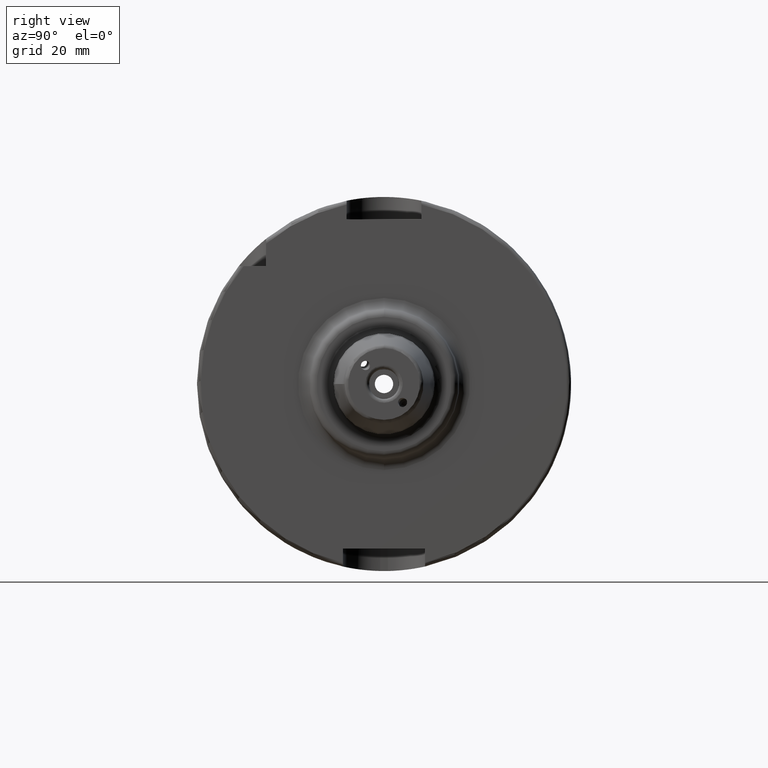
[diagram: clean part render]
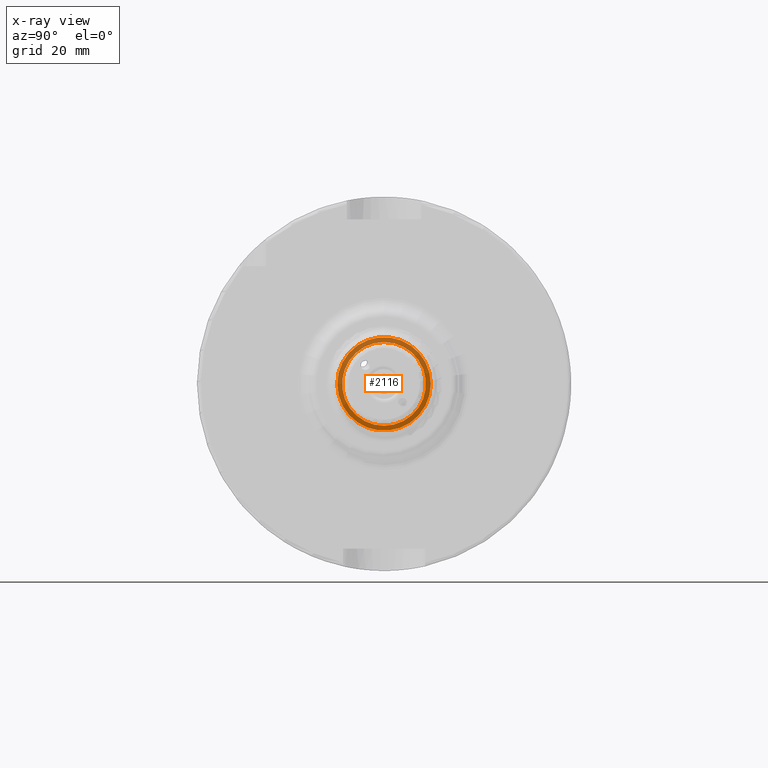
[diagram: x-ray — body ghosted, one internal face saturated and labeled with its STEP entity id]
A machine part, right view, then the same camera in x-ray: the body is ghosted and one INTERNAL B-rep face — a face not visible from any outside direction — is saturated and labeled: STEP entity #2116.
In plain terms, the highlighted planar face has unit normal (-1, 0, 0).
Its self-contained STEP definition (entity closure, byte-faithful):
#96=FACE_BOUND('',#449,.T.);
#133=PLANE('',#2386);
#315=FACE_OUTER_BOUND('',#448,.T.);
#448=EDGE_LOOP('',(#1914));
#449=EDGE_LOOP('',(#1915));
#793=CIRCLE('',#2377,11.188101);
#798=CIRCLE('',#2385,12.5);
#1013=VERTEX_POINT('',#4529);
#1017=VERTEX_POINT('',#4542);
#1318=EDGE_CURVE('',#1013,#1013,#793,.T.);
#1324=EDGE_CURVE('',#1017,#1017,#798,.T.);
#1914=ORIENTED_EDGE('',*,*,#1324,.F.);
#1915=ORIENTED_EDGE('',*,*,#1318,.T.);
#2116=ADVANCED_FACE('',(#315,#96),#133,.F.);
#2377=AXIS2_PLACEMENT_3D('',#4531,#2965,#2966);
#2385=AXIS2_PLACEMENT_3D('',#4544,#2982,#2983);
#2386=AXIS2_PLACEMENT_3D('',#4545,#2984,#2985);
#2965=DIRECTION('center_axis',(-1.,0.,0.));
#2966=DIRECTION('ref_axis',(0.,0.,1.));
#2982=DIRECTION('center_axis',(-1.,0.,0.));
#2983=DIRECTION('ref_axis',(0.,0.,1.));
#2984=DIRECTION('center_axis',(-1.,0.,0.));
#2985=DIRECTION('ref_axis',(0.,0.,1.));
#4529=CARTESIAN_POINT('',(22.5,-1.37014720781873E-15,-11.188101));
#4531=CARTESIAN_POINT('Origin',(22.5,0.,0.));
#4542=CARTESIAN_POINT('',(22.5,-12.5,1.53080849893419E-15));
#4544=CARTESIAN_POINT('Origin',(22.5,0.,0.));
#4545=CARTESIAN_POINT('Origin',(22.5,10.,0.));